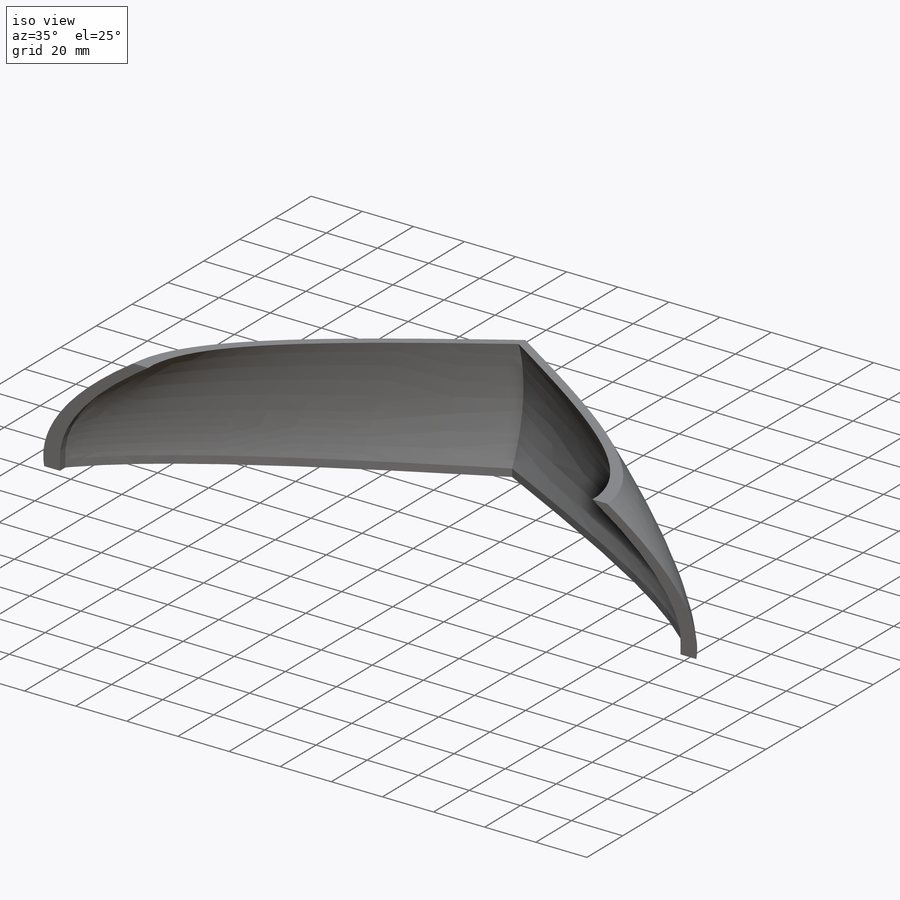
[diagram: iso view]
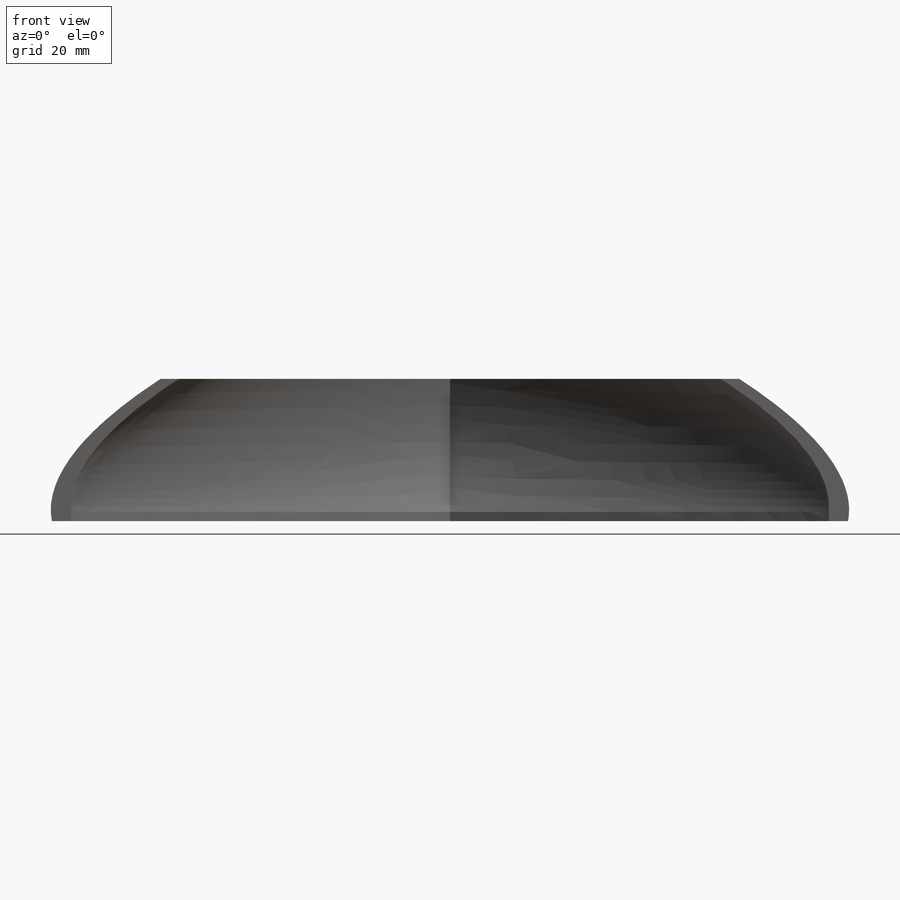
[diagram: front view]
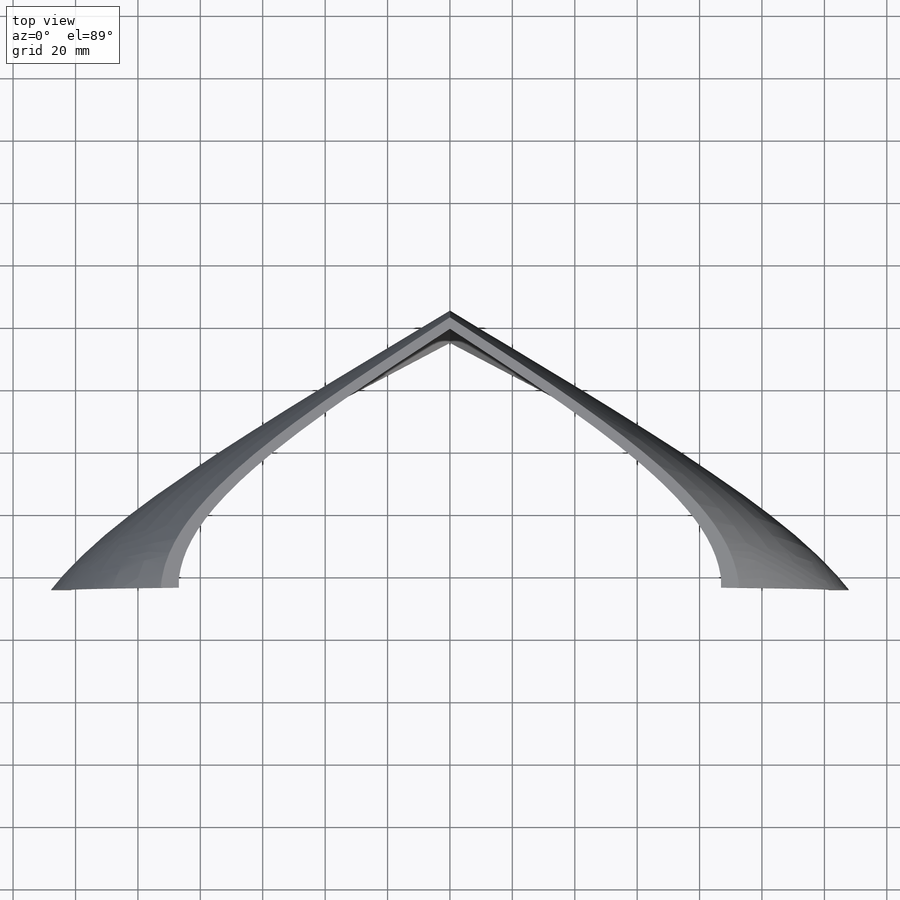
[diagram: top view]
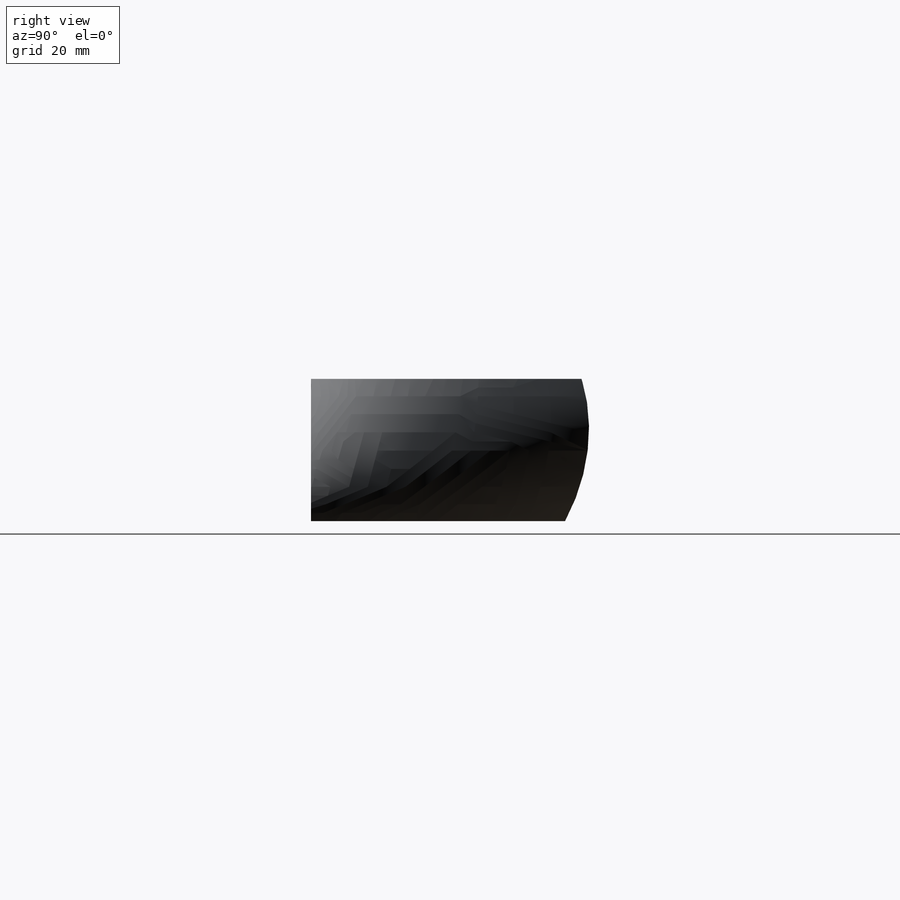
[diagram: right view]
SOLIDWORKS PART (.sldprt)
format: sldprt  version: not decoded by parser v0  size: 222,208 bytes
history: native  units: mm
features: sketch x2, cut_extrude x2, material x1, shell x1 (+14 scaffold rows collapsed)
feature tree (20):
  scaffold x14  (default folders/planes/origin — collapsed)
  material  "ABS"
  shell  "Shell1"  Thickness=3mm
  sketch  "Sketch1"  dims[D1=0.0mm]
  cut_extrude  "Extrude1"  Depth=10mm
  sketch  "Sketch2"  dims[D1=0.0mm]
  cut_extrude  "Extrude2"  Depth=10mm
decode coverage: 5 of 5 modeling features carry decoded parameters
note: suppression state not decoded; provenance and decode notes live in map.json
